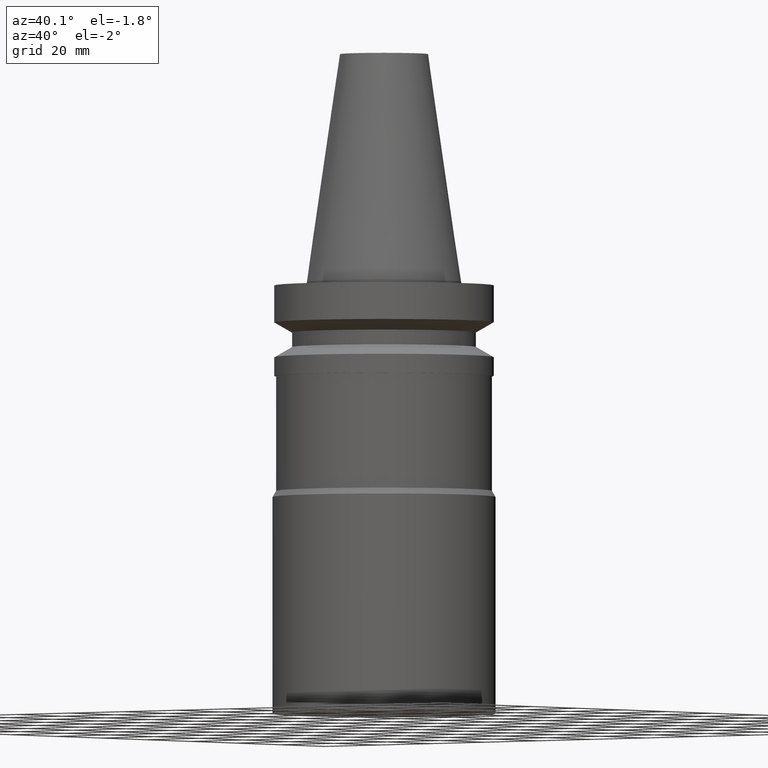
[diagram: clean part render]
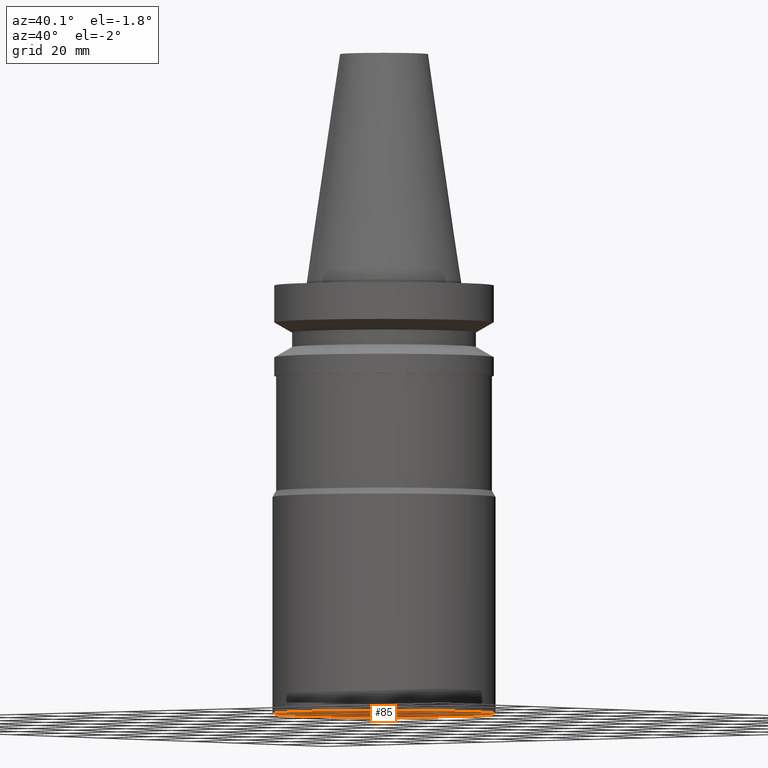
[diagram: same view with one face highlighted and labeled with its STEP entity id]
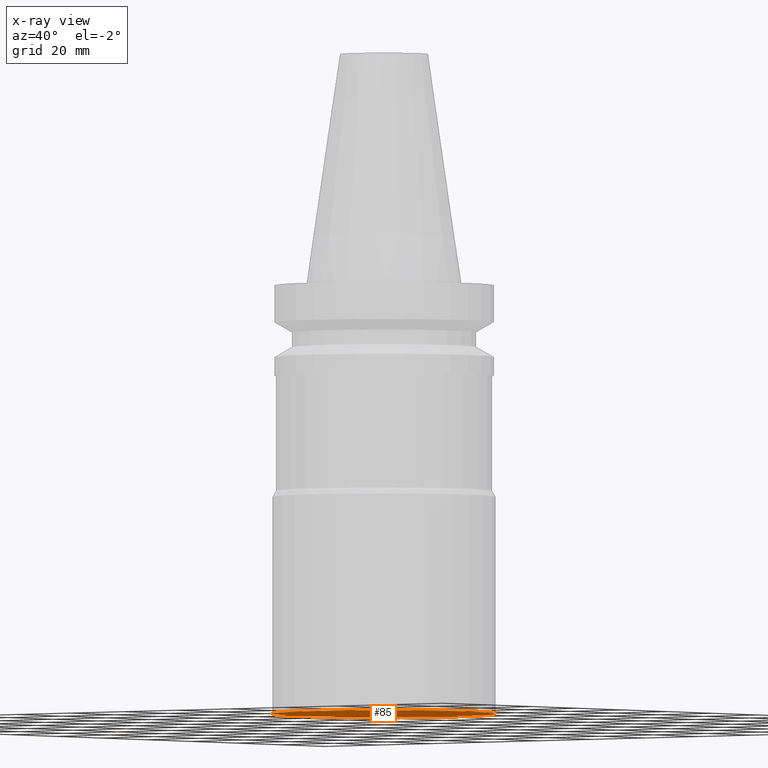
[diagram: x-ray of the same camera — body ghosted, the highlighted face saturated]
A machine part, auxiliary view. The second image highlights one B-rep face of the part: STEP entity #85.
The next image is the same camera in x-ray: the body ghosted, the highlighted face saturated — about 0% of this face is hidden behind the body in this view.
In plain terms, the highlighted planar face has unit normal (0, 0, -1).
Its self-contained STEP definition (entity closure, byte-faithful):
#85=ADVANCED_FACE('',(#120),#121,.T.);
#120=FACE_OUTER_BOUND('',#160,.T.);
#121=PLANE('',#161);
#160=EDGE_LOOP('',(#220));
#161=AXIS2_PLACEMENT_3D('',#221,#222,#223);
#220=ORIENTED_EDGE('',*,*,#248,.T.);
#221=CARTESIAN_POINT('',(7.59281015471359E-015,16.0,-124.0));
#222=DIRECTION('',(6.12323399573677E-017,1.22464679914735E-016,-1.0));
#223=DIRECTION('',(-1.23259516440783E-032,1.0,1.22464679914735E-016));
#248=EDGE_CURVE('',#271,#271,#272,.T.);
#271=VERTEX_POINT('',#297);
#272=CIRCLE('',#298,32.0);
#297=CARTESIAN_POINT('',(7.59281015471359E-015,32.0,-124.0));
#298=AXIS2_PLACEMENT_3D('',#333,#334,#335);
#333=CARTESIAN_POINT('',(7.59281015471359E-015,1.51856203094272E-014,-124.0));
#334=DIRECTION('',(6.12323399573677E-017,1.22464679914735E-016,-1.0));
#335=DIRECTION('',(-1.23259516440783E-032,1.0,1.22464679914735E-016));